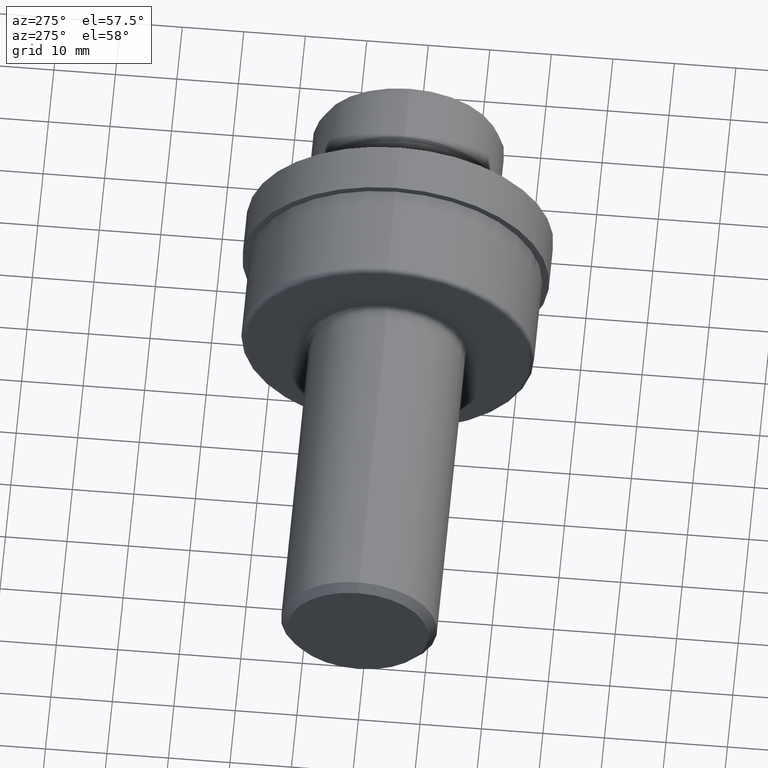
[diagram: clean part render]
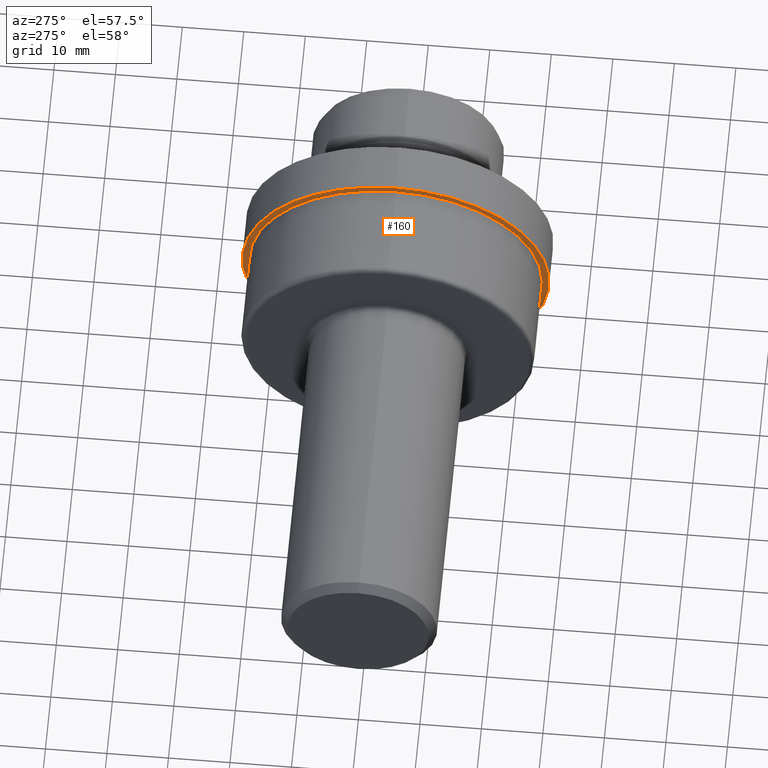
[diagram: same view with one face highlighted and labeled with its STEP entity id]
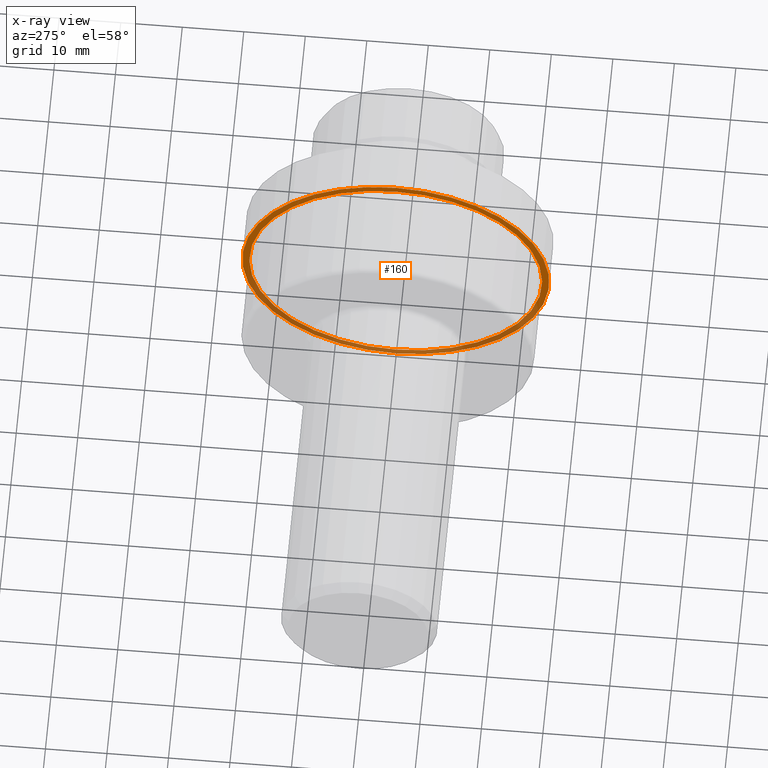
[diagram: x-ray of the same camera — body ghosted, the highlighted face saturated]
A machine part, auxiliary view. The second image highlights one B-rep face of the part: STEP entity #160.
The next image is the same camera in x-ray: the body ghosted, the highlighted face saturated — about 42% of this face is hidden behind the body in this view.
In plain terms, the highlighted planar face has unit normal (1, 0, 0).
Its self-contained STEP definition (entity closure, byte-faithful):
#28 = CARTESIAN_POINT ( 'NONE',  ( 2.735000000000000320, 0.0000000000000000000, 0.0000000000000000000 ) ) ;
#53 = DIRECTION ( 'NONE',  ( 0.0000000000000000000, 0.0000000000000000000, -1.000000000000000000 ) ) ;
#92 = DIRECTION ( 'NONE',  ( -1.000000000000000000, -0.0000000000000000000, -0.0000000000000000000 ) ) ;
#106 = DIRECTION ( 'NONE',  ( 0.0000000000000000000, 0.0000000000000000000, 1.000000000000000000 ) ) ;
#111 = CIRCLE ( 'NONE', #254, 0.9375000000000000000 ) ;
#160 = ADVANCED_FACE ( 'NONE', ( #481, #315 ), #825, .F. ) ;
#203 = EDGE_CURVE ( 'NONE', #474, #561, #665, .T. ) ;
#239 = DIRECTION ( 'NONE',  ( 0.0000000000000000000, 0.0000000000000000000, 1.000000000000000000 ) ) ;
#244 = AXIS2_PLACEMENT_3D ( 'NONE', #311, #440, #450 ) ;
#248 = VERTEX_POINT ( 'NONE', #356 ) ;
#254 = AXIS2_PLACEMENT_3D ( 'NONE', #28, #92, #106 ) ;
#257 = EDGE_LOOP ( 'NONE', ( #804, #660 ) ) ;
#259 = DIRECTION ( 'NONE',  ( 1.000000000000000000, 0.0000000000000000000, 0.0000000000000000000 ) ) ;
#282 = EDGE_CURVE ( 'NONE', #820, #248, #297, .T. ) ;
#297 = CIRCLE ( 'NONE', #244, 0.9375000000000000000 ) ;
#306 = ORIENTED_EDGE ( 'NONE', *, *, #322, .F. ) ;
#311 = CARTESIAN_POINT ( 'NONE',  ( 2.735000000000000320, 0.0000000000000000000, 0.0000000000000000000 ) ) ;
#315 = FACE_OUTER_BOUND ( 'NONE', #257, .T. ) ;
#322 = EDGE_CURVE ( 'NONE', #248, #820, #111, .T. ) ;
#351 = AXIS2_PLACEMENT_3D ( 'NONE', #368, #774, #700 ) ;
#356 = CARTESIAN_POINT ( 'NONE',  ( 2.735000000000000320, 0.0000000000000000000, 0.9375000000000000000 ) ) ;
#368 = CARTESIAN_POINT ( 'NONE',  ( 2.735000000000000320, 0.0000000000000000000, 0.0000000000000000000 ) ) ;
#381 = CARTESIAN_POINT ( 'NONE',  ( 2.735000000000000320, 0.0000000000000000000, 0.0000000000000000000 ) ) ;
#414 = CARTESIAN_POINT ( 'NONE',  ( 2.735000000000000320, 1.148106374200643740E-16, -0.9375000000000000000 ) ) ;
#422 = DIRECTION ( 'NONE',  ( -1.000000000000000000, -0.0000000000000000000, -0.0000000000000000000 ) ) ;
#440 = DIRECTION ( 'NONE',  ( -1.000000000000000000, -0.0000000000000000000, -0.0000000000000000000 ) ) ;
#448 = AXIS2_PLACEMENT_3D ( 'NONE', #381, #422, #239 ) ;
#450 = DIRECTION ( 'NONE',  ( 0.0000000000000000000, 0.0000000000000000000, 1.000000000000000000 ) ) ;
#455 = EDGE_CURVE ( 'NONE', #561, #474, #591, .T. ) ;
#470 = AXIS2_PLACEMENT_3D ( 'NONE', #883, #259, #53 ) ;
#474 = VERTEX_POINT ( 'NONE', #805 ) ;
#481 = FACE_BOUND ( 'NONE', #812, .T. ) ;
#488 = CARTESIAN_POINT ( 'NONE',  ( 2.735000000000000320, 0.0000000000000000000, 0.9825000000000001510 ) ) ;
#544 = ORIENTED_EDGE ( 'NONE', *, *, #282, .F. ) ;
#561 = VERTEX_POINT ( 'NONE', #488 ) ;
#591 = CIRCLE ( 'NONE', #448, 0.9825000000000001510 ) ;
#660 = ORIENTED_EDGE ( 'NONE', *, *, #203, .T. ) ;
#665 = CIRCLE ( 'NONE', #351, 0.9825000000000001510 ) ;
#700 = DIRECTION ( 'NONE',  ( 0.0000000000000000000, 0.0000000000000000000, 1.000000000000000000 ) ) ;
#774 = DIRECTION ( 'NONE',  ( -1.000000000000000000, -0.0000000000000000000, -0.0000000000000000000 ) ) ;
#804 = ORIENTED_EDGE ( 'NONE', *, *, #455, .T. ) ;
#805 = CARTESIAN_POINT ( 'NONE',  ( 2.735000000000000320, 1.203215480162274635E-16, -0.9825000000000001510 ) ) ;
#812 = EDGE_LOOP ( 'NONE', ( #306, #544 ) ) ;
#820 = VERTEX_POINT ( 'NONE', #414 ) ;
#825 = PLANE ( 'NONE',  #470 ) ;
#883 = CARTESIAN_POINT ( 'NONE',  ( 2.735000000000000320, 0.9375000000000000000, 0.0000000000000000000 ) ) ;